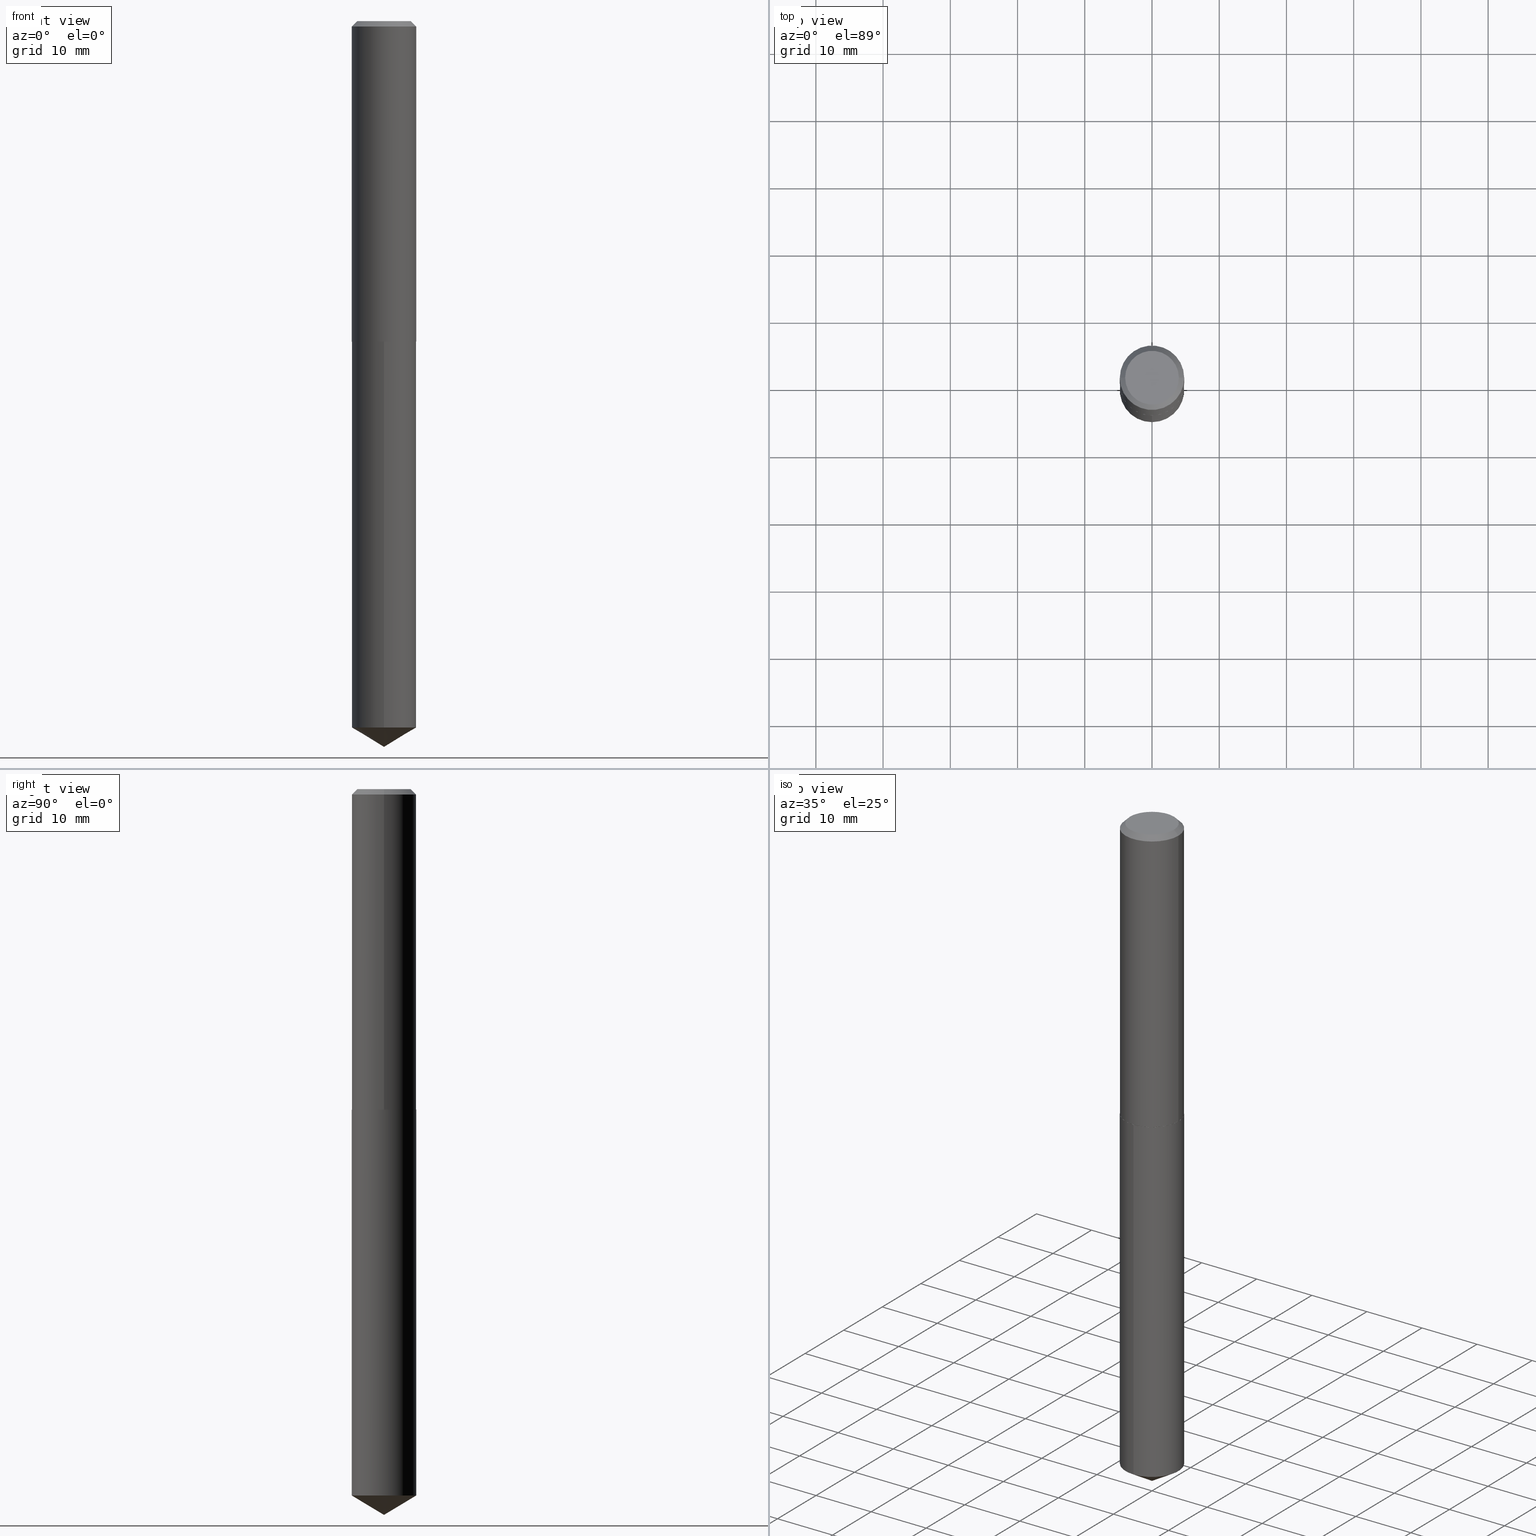
[diagram: canonical four-view strip — front | top / right | iso, engineering-drawing reading convention]
A machine part, canonical four-view strip (front | top / right | iso — engineering-drawing reading convention). The complete STEP part file that produces these views, byte-faithful:
ISO-10303-21;
HEADER;
FILE_DESCRIPTION (( 'STEP AP203' ),
    '1' );
FILE_NAME ('51222.STEP',
    '2024-04-22T18:41:56',
    ( '' ),
    ( '' ),
    'SwSTEP 2.0',
    'SolidWorks 2023',
    '' );
FILE_SCHEMA (( 'CONFIG_CONTROL_DESIGN' ));
ENDSEC;

DATA;
#1 = CONICAL_SURFACE ( 'NONE', #275, 0.1885000000000002784, 0.7853981633978239785 ) ;
#2 = DIRECTION ( 'NONE',  ( -6.982962677686266711E-15, -1.000000000000000000, 2.898512460121233908E-15 ) ) ;
#3 = EDGE_CURVE ( 'NONE', #116, #118, #174, .T. ) ;
#4 = ORIENTED_EDGE ( 'NONE', *, *, #87, .T. ) ;
#5 = CALENDAR_DATE ( 2024, 22, 4 ) ;
#6 = AXIS2_PLACEMENT_3D ( 'NONE', #107, #220, #343 ) ;
#7 = AXIS2_PLACEMENT_3D ( 'NONE', #201, #301, #117 ) ;
#8 = PRODUCT ( '51222', '51222', '', ( #210 ) ) ;
#9 = COORDINATED_UNIVERSAL_TIME_OFFSET ( 5, 0, .BEHIND. ) ;
#10 = CARTESIAN_POINT ( 'NONE',  ( 1.011635140017787534E-28, -1.444321640863108601E-14, -4.136737773313305944 ) ) ;
#11 = DATE_AND_TIME ( #282, #102 ) ;
#12 = DIRECTION ( 'NONE',  ( -0.7071067811865449082, 2.468850131082229450E-15, -0.7071067811865501263 ) ) ;
#13 = PERSON_AND_ORGANIZATION_ROLE ( 'design_owner' ) ;
#14 = CARTESIAN_POINT ( 'NONE',  ( -6.738379978296069609E-48, 9.620620753268311952E-34, 2.755455298081579541E-19 ) ) ;
#15 = CIRCLE ( 'NONE', #345, 0.1885000000000000286 ) ;
#16 = CARTESIAN_POINT ( 'NONE',  ( 4.590144949209500083E-29, -6.553510473008582355E-15, -1.876999999999999336 ) ) ;
#17 = DIRECTION ( 'NONE',  ( 0.7071067811868130271, -2.468850131085038979E-15, 0.7071067811862817853 ) ) ;
#18 = EDGE_LOOP ( 'NONE', ( #293, #349, #259, #140 ) ) ;
#19 = ORIENTED_EDGE ( 'NONE', *, *, #95, .T. ) ;
#20 = DIRECTION ( 'NONE',  ( 1.000000000000000000, -6.982962677686266711E-15, 0.000000000000000000 ) ) ;
#21 = AXIS2_PLACEMENT_3D ( 'NONE', #146, #269, #2 ) ;
#22 = DIRECTION ( 'NONE',  ( 2.445468806185136597E-29, -3.491481338843145583E-15, -1.000000000000000000 ) ) ;
#23 = ORIENTED_EDGE ( 'NONE', *, *, #250, .F. ) ;
#24 = CARTESIAN_POINT ( 'NONE',  ( 0.1572500000000000009, -1.240562987284178150E-15, 5.510910596244927326E-19 ) ) ;
#25 = CARTESIAN_POINT ( 'NONE',  ( -0.1885000000000002784, -5.212391675431369628E-15, -1.876499999999999613 ) ) ;
#26 = CARTESIAN_POINT ( 'NONE',  ( 4.588922214806407281E-29, -6.551764732339160851E-15, -1.876499999999999613 ) ) ;
#27 = APPROVAL ( #38, 'UNSPECIFIED' ) ;
#28 = CARTESIAN_POINT ( 'NONE',  ( 4.590144949209500083E-29, -6.553510473008582355E-15, -1.876999999999999336 ) ) ;
#29 = DATE_TIME_ROLE ( 'creation_date' ) ;
#30 = AXIS2_PLACEMENT_3D ( 'NONE', #309, #40, #162 ) ;
#31 = VECTOR ( 'NONE', #365, 39.37007874015748854 ) ;
#32 = ORIENTED_EDGE ( 'NONE', *, *, #327, .T. ) ;
#33 = PERSON_AND_ORGANIZATION_ROLE ( 'creator' ) ;
#34 = ORIENTED_EDGE ( 'NONE', *, *, #141, .F. ) ;
#35 = CARTESIAN_POINT ( 'NONE',  ( 0.000000000000000000, 0.000000000000000000, 0.000000000000000000 ) ) ;
#36 = DIRECTION ( 'NONE',  ( -2.445468806185136597E-29, 3.491481338843145583E-15, 1.000000000000000000 ) ) ;
#37 = ADVANCED_FACE ( 'NONE', ( #347 ), #79, .F. ) ;
#38 = APPROVAL_STATUS ( 'not_yet_approved' ) ;
#39 = VECTOR ( 'NONE', #12, 39.37007874015748143 ) ;
#40 = DIRECTION ( 'NONE',  ( -2.445507844419336832E-29, 3.491425433869852673E-15, 1.000000000000000000 ) ) ;
#41 = CC_DESIGN_APPROVAL ( #195, ( #61 ) ) ;
#42 = CARTESIAN_POINT ( 'NONE',  ( 0.1885000000000002784, -7.868053197083025029E-15, -1.876499999999999613 ) ) ;
#43 = DIRECTION ( 'NONE',  ( -2.445507844419336832E-29, 3.491425433869852673E-15, 1.000000000000000000 ) ) ;
#44 = EDGE_LOOP ( 'NONE', ( #166, #380, #360 ) ) ;
#45 = DIRECTION ( 'NONE',  ( 1.000000000000000000, -6.982962677686266711E-15, 4.876176775795935232E-29 ) ) ;
#46 = ORIENTED_EDGE ( 'NONE', *, *, #131, .T. ) ;
#47 = CARTESIAN_POINT ( 'NONE',  ( 1.339373056907834611E-15, 0.1884999999999934506, -1.877000000000000002 ) ) ;
#48 = PERSON ( 'UNSPECIFIED', 'UNSPECIFIED', 'UNSPECIFIED', ('UNSPECIFIED'), ('UNSPECIFIED'), ('UNSPECIFIED') ) ;
#49 = CIRCLE ( 'NONE', #189, 0.1885000000000002784 ) ;
#50 = EDGE_LOOP ( 'NONE', ( #389, #358, #94 ) ) ;
#51 = LOCAL_TIME ( 14, 41, 56.00000000000000000, #211 ) ;
#52 = MANIFOLD_SOLID_BREP ( 'Body-Move/Copy2[1]', #325 ) ;
#53 = VERTEX_POINT ( 'NONE', #190 ) ;
#54 = PRODUCT_RELATED_PRODUCT_CATEGORY ( 'detail', '', ( #8 ) ) ;
#55 = DIRECTION ( 'NONE',  ( -5.985567269335957057E-15, -0.8571673007021125557, 0.5150380749100539335 ) ) ;
#56 = CIRCLE ( 'NONE', #109, 0.1880000000000002780 ) ;
#57 = CYLINDRICAL_SURFACE ( 'NONE', #161, 0.1885000000000000286 ) ;
#58 = EDGE_LOOP ( 'NONE', ( #382, #82, #237, #86 ) ) ;
#59 = LENGTH_MEASURE_WITH_UNIT ( LENGTH_MEASURE( 0.02539999999999999897 ), #267 );
#60 = AXIS2_PLACEMENT_3D ( 'NONE', #16, #43, #339 ) ;
#61 = SECURITY_CLASSIFICATION ( '', '', #372 ) ;
#62 = CARTESIAN_POINT ( 'NONE',  ( 4.590144949209500083E-29, -6.553510473008582355E-15, -1.876999999999999336 ) ) ;
#63 = EDGE_CURVE ( 'NONE', #77, #108, #317, .T. ) ;
#64 = PERSON_AND_ORGANIZATION ( #48, #175 ) ;
#65 = APPROVAL_ROLE ( '' ) ;
#66 = CALENDAR_DATE ( 2024, 22, 4 ) ;
#67 = CIRCLE ( 'NONE', #268, 0.1885000000000000286 ) ;
#68 = VECTOR ( 'NONE', #260, 39.37007874015748143 ) ;
#69 = CARTESIAN_POINT ( 'NONE',  ( 1.339373056907890225E-15, 0.1884999999999934506, -1.877000000000000002 ) ) ;
#70 = APPLICATION_PROTOCOL_DEFINITION ( 'international standard', 'config_control_design', 1994, #388 ) ;
#71 = PLANE ( 'NONE',  #160 ) ;
#72 = ADVANCED_FACE ( 'NONE', ( #104 ), #106, .T. ) ;
#73 = PERSON_AND_ORGANIZATION ( #48, #175 ) ;
#74 = DIRECTION ( 'NONE',  ( 1.000000000000000000, -6.982962677686266711E-15, 4.876198312324207577E-29 ) ) ;
#75 = ORIENTED_EDGE ( 'NONE', *, *, #327, .F. ) ;
#76 = CONICAL_SURFACE ( 'NONE', #203, 0.1885000000000002784, 0.7853981633978239785 ) ;
#77 = VERTEX_POINT ( 'NONE', #69 ) ;
#78 = CARTESIAN_POINT ( 'NONE',  ( -0.1885000000000001674, 1.339373056907790040E-15, -9.272192645130504778E-30 ) ) ;
#79 = PLANE ( 'NONE',  #101 ) ;
#80 = ORIENTED_EDGE ( 'NONE', *, *, #103, .T. ) ;
#81 = DIRECTION ( 'NONE',  ( 1.000000000000000000, -6.982962677686265922E-15, 0.000000000000000000 ) ) ;
#82 = ORIENTED_EDGE ( 'NONE', *, *, #218, .T. ) ;
#83 = ORIENTED_EDGE ( 'NONE', *, *, #299, .F. ) ;
#84 = ORIENTED_EDGE ( 'NONE', *, *, #371, .F. ) ;
#85 = VECTOR ( 'NONE', #315, 39.37007874015748143 ) ;
#86 = ORIENTED_EDGE ( 'NONE', *, *, #205, .F. ) ;
#87 = EDGE_CURVE ( 'NONE', #144, #108, #216, .T. ) ;
#88 = DIRECTION ( 'NONE',  ( -6.982962677686266711E-15, -1.000000000000000000, 2.898512460121233908E-15 ) ) ;
#89 = ORIENTED_EDGE ( 'NONE', *, *, #115, .T. ) ;
#90 = CARTESIAN_POINT ( 'NONE',  ( -0.1885000000000002784, -5.212391675431369628E-15, -1.876499999999999613 ) ) ;
#91 = VECTOR ( 'NONE', #222, 39.37007874015748143 ) ;
#92 = LOCAL_TIME ( 14, 41, 56.00000000000000000, #244 ) ;
#93 = ADVANCED_FACE ( 'NONE', ( #254 ), #71, .F. ) ;
#94 = ORIENTED_EDGE ( 'NONE', *, *, #147, .F. ) ;
#95 = EDGE_CURVE ( 'NONE', #246, #333, #202, .T. ) ;
#96 = DATE_AND_TIME ( #340, #92 ) ;
#97 = APPROVAL_DATE_TIME ( #370, #195 ) ;
#98 = COORDINATED_UNIVERSAL_TIME_OFFSET ( 5, 0, .BEHIND. ) ;
#99 = CARTESIAN_POINT ( 'NONE',  ( 0.1885000000000000286, -1.402312664418782881E-15, -0.03125000000000023592 ) ) ;
#100 = PERSON_AND_ORGANIZATION ( #48, #175 ) ;
#101 = AXIS2_PLACEMENT_3D ( 'NONE', #14, #156, #337 ) ;
#102 = LOCAL_TIME ( 14, 41, 56.00000000000000000, #98 ) ;
#103 = EDGE_CURVE ( 'NONE', #53, #333, #378, .T. ) ;
#104 = FACE_OUTER_BOUND ( 'NONE', #350, .T. ) ;
#105 = APPROVAL_ROLE ( '' ) ;
#106 = CYLINDRICAL_SURFACE ( 'NONE', #368, 0.1885000000000001674 ) ;
#107 = CARTESIAN_POINT ( 'NONE',  ( 4.590144949209500083E-29, -6.553510473008582355E-15, -1.876999999999999336 ) ) ;
#108 = VERTEX_POINT ( 'NONE', #193 ) ;
#109 = AXIS2_PLACEMENT_3D ( 'NONE', #355, #257, #81 ) ;
#110 = LINE ( 'NONE', #99, #91 ) ;
#111 = CIRCLE ( 'NONE', #7, 0.1572500000000000009 ) ;
#112 = ORIENTED_EDGE ( 'NONE', *, *, #115, .F. ) ;
#113 = DIRECTION ( 'NONE',  ( -2.445507844419336832E-29, 3.491425433869852673E-15, 1.000000000000000000 ) ) ;
#114 = EDGE_LOOP ( 'NONE', ( #75, #89, #19, #376 ) ) ;
#115 = EDGE_CURVE ( 'NONE', #383, #246, #110, .T. ) ;
#116 = VERTEX_POINT ( 'NONE', #278 ) ;
#117 = DIRECTION ( 'NONE',  ( 1.000000000000000000, -6.982962677686266711E-15, 4.876198312324207577E-29 ) ) ;
#118 = VERTEX_POINT ( 'NONE', #307 ) ;
#119 = EDGE_CURVE ( 'NONE', #144, #221, #261, .T. ) ;
#120 = CARTESIAN_POINT ( 'NONE',  ( 4.588922214806407281E-29, -6.551764732339160851E-15, -1.876499999999999613 ) ) ;
#121 = ORIENTED_EDGE ( 'NONE', *, *, #187, .T. ) ;
#122 = CONICAL_SURFACE ( 'NONE', #204, 65.52281426576898582, 1.029744258676658308 ) ;
#123 = ADVANCED_BREP_SHAPE_REPRESENTATION ( '51222', ( #52, #312, #288 ), #228 ) ;
#124 = ORIENTED_EDGE ( 'NONE', *, *, #299, .T. ) ;
#125 = CC_DESIGN_PERSON_AND_ORGANIZATION_ASSIGNMENT ( #151, #126, ( #247 ) ) ;
#126 = PERSON_AND_ORGANIZATION_ROLE ( 'design_supplier' ) ;
#127 = ORIENTED_EDGE ( 'NONE', *, *, #63, .T. ) ;
#128 = AXIS2_PLACEMENT_3D ( 'NONE', #287, #300, #390 ) ;
#129 = APPROVAL_DATE_TIME ( #180, #27 ) ;
#130 = DIRECTION ( 'NONE',  ( -6.982962677686266711E-15, -1.000000000000000000, 2.898512460121233908E-15 ) ) ;
#131 = EDGE_CURVE ( 'NONE', #316, #142, #49, .T. ) ;
#132 = CARTESIAN_POINT ( 'NONE',  ( 0.1885000000000002784, -7.868053197083025029E-15, -1.876499999999999613 ) ) ;
#133 = VECTOR ( 'NONE', #322, 39.37007874015748143 ) ;
#134 = CARTESIAN_POINT ( 'NONE',  ( 4.590144949209499522E-29, -6.553510473008580777E-15, -1.876999999999999114 ) ) ;
#135 = CARTESIAN_POINT ( 'NONE',  ( 4.588922214806407281E-29, -6.551764732339160851E-15, -1.876499999999999613 ) ) ;
#136 = DIRECTION ( 'NONE',  ( -2.445507844419336832E-29, 3.491425433869852673E-15, 1.000000000000000000 ) ) ;
#137 = EDGE_LOOP ( 'NONE', ( #199, #256 ) ) ;
#138 = CIRCLE ( 'NONE', #318, 0.1885000000000002784 ) ;
#139 = EDGE_LOOP ( 'NONE', ( #273, #32 ) ) ;
#140 = ORIENTED_EDGE ( 'NONE', *, *, #131, .F. ) ;
#141 = EDGE_CURVE ( 'NONE', #53, #383, #361, .T. ) ;
#142 = VERTEX_POINT ( 'NONE', #132 ) ;
#143 = CARTESIAN_POINT ( 'NONE',  ( 1.039340833878218266E-28, -1.483855809394687209E-14, -4.250000000000000000 ) ) ;
#144 = VERTEX_POINT ( 'NONE', #373 ) ;
#145 = CYLINDRICAL_SURFACE ( 'NONE', #386, 0.1885000000000001674 ) ;
#146 = CARTESIAN_POINT ( 'NONE',  ( 4.590144949209500083E-29, -6.553510473008582355E-15, -1.876999999999999336 ) ) ;
#147 = EDGE_CURVE ( 'NONE', #221, #144, #303, .T. ) ;
#148 = DIRECTION ( 'NONE',  ( -0.7071067811868130271, 7.493145998871311837E-15, 0.7071067811862817853 ) ) ;
#149 = DIRECTION ( 'NONE',  ( -2.445507844419336832E-29, 3.491425433869852673E-15, 1.000000000000000000 ) ) ;
#150 = ADVANCED_FACE ( 'NONE', ( #252 ), #377, .F. ) ;
#151 = PERSON_AND_ORGANIZATION ( #48, #175 ) ;
#152 = APPLICATION_PROTOCOL_DEFINITION ( 'international standard', 'config_control_design', 1994, #249 ) ;
#153 = DIRECTION ( 'NONE',  ( 1.000000000000000000, -6.982962677686266711E-15, 4.876176775795935232E-29 ) ) ;
#154 = CC_DESIGN_PERSON_AND_ORGANIZATION_ASSIGNMENT ( #100, #33, ( #247 ) ) ;
#155 = SHAPE_DEFINITION_REPRESENTATION ( #243, #123 ) ;
#156 = DIRECTION ( 'NONE',  ( 2.438088387897960049E-29, -3.491481338843145188E-15, -1.000000000000000000 ) ) ;
#157 = DIRECTION ( 'NONE',  ( 1.000000000000000000, 0.000000000000000000, 0.000000000000000000 ) ) ;
#158 = DIRECTION ( 'NONE',  ( 1.000000000000000000, -6.982962677686268288E-15, 0.000000000000000000 ) ) ;
#159 = APPROVAL_ROLE ( '' ) ;
#160 = AXIS2_PLACEMENT_3D ( 'NONE', #186, #214, #183 ) ;
#161 = AXIS2_PLACEMENT_3D ( 'NONE', #28, #149, #88 ) ;
#162 = DIRECTION ( 'NONE',  ( -6.982962677686266711E-15, -1.000000000000000000, 2.898512460121233908E-15 ) ) ;
#163 = CARTESIAN_POINT ( 'NONE',  ( 7.642090019328610544E-31, -1.091087918388491376E-16, -0.03125000000000023592 ) ) ;
#164 = DIRECTION ( 'NONE',  ( 1.000000000000000000, -6.982962677686265922E-15, 0.000000000000000000 ) ) ;
#165 = CARTESIAN_POINT ( 'NONE',  ( 0.1885000000000000286, -1.425397256582710518E-15, -0.03125000000000023592 ) ) ;
#166 = ORIENTED_EDGE ( 'NONE', *, *, #320, .F. ) ;
#167 = DIRECTION ( 'NONE',  ( -6.982962677686265133E-15, -1.000000000000000000, 3.468864327941565026E-15 ) ) ;
#168 = LOCAL_TIME ( 14, 41, 56.00000000000000000, #242 ) ;
#169 = ADVANCED_FACE ( 'NONE', ( #290 ), #274, .T. ) ;
#170 = VERTEX_POINT ( 'NONE', #143 ) ;
#171 = DIRECTION ( 'NONE',  ( -6.982962677686265133E-15, -1.000000000000000000, 3.468864327941565026E-15 ) ) ;
#172 = ORIENTED_EDGE ( 'NONE', *, *, #63, .F. ) ;
#173 = CC_DESIGN_DATE_AND_TIME_ASSIGNMENT ( #96, #29, ( #266 ) ) ;
#174 = CIRCLE ( 'NONE', #324, 0.1880000000000002780 ) ;
#175 = ORGANIZATION ( 'UNSPECIFIED', 'UNSPECIFIED', '' ) ;
#176 = DIRECTION ( 'NONE',  ( 1.000000000000000000, -6.982962677686268288E-15, 0.000000000000000000 ) ) ;
#177 = EDGE_CURVE ( 'NONE', #118, #116, #56, .T. ) ;
#178 = CARTESIAN_POINT ( 'NONE',  ( 1.039326178925099410E-28, -1.483876796121661353E-14, -4.250000000000000000 ) ) ;
#179 =( NAMED_UNIT ( * ) SI_UNIT ( $, .STERADIAN. ) SOLID_ANGLE_UNIT ( ) );
#180 = DATE_AND_TIME ( #5, #375 ) ;
#181 = ADVANCED_FACE ( 'NONE', ( #224 ), #122, .T. ) ;
#182 = CC_DESIGN_APPROVAL ( #27, ( #247 ) ) ;
#183 = DIRECTION ( 'NONE',  ( 1.000000000000000000, -6.982962677686265922E-15, 4.876176775795935793E-29 ) ) ;
#184 = DESIGN_CONTEXT ( 'detailed design', #388, 'design' ) ;
#185 =( CONVERSION_BASED_UNIT ( 'INCH', #59 ) LENGTH_UNIT ( ) NAMED_UNIT ( #217 ) );
#186 = CARTESIAN_POINT ( 'NONE',  ( 4.590144949209499522E-29, -6.553510473008580777E-15, -1.876999999999999114 ) ) ;
#187 = EDGE_CURVE ( 'NONE', #333, #246, #67, .T. ) ;
#188 = CARTESIAN_POINT ( 'NONE',  ( -1.316288464743815466E-15, -0.1885000000000065790, -1.876999999999998892 ) ) ;
#189 = AXIS2_PLACEMENT_3D ( 'NONE', #135, #36, #158 ) ;
#190 = CARTESIAN_POINT ( 'NONE',  ( -0.1572500000000000009, 1.152625276985588752E-15, 5.510910596084460769E-19 ) ) ;
#191 = EDGE_LOOP ( 'NONE', ( #124, #127 ) ) ;
#192 = CARTESIAN_POINT ( 'NONE',  ( 1.339373056907889634E-15, 0.1884999999999855125, -4.136737773313305944 ) ) ;
#193 = CARTESIAN_POINT ( 'NONE',  ( -1.316288464743815466E-15, -0.1885000000000065790, -1.876999999999998892 ) ) ;
#194 = CARTESIAN_POINT ( 'NONE',  ( 0.1885000000000001674, -1.316288464743862403E-15, 9.191593222375346424E-30 ) ) ;
#195 = APPROVAL ( #272, 'UNSPECIFIED' ) ;
#196 = CLOSED_SHELL ( 'NONE', ( #169, #240, #387, #93, #292, #72, #255, #37 ) ) ;
#197 = ORIENTED_EDGE ( 'NONE', *, *, #381, .T. ) ;
#198 = LINE ( 'NONE', #194, #85 ) ;
#199 = ORIENTED_EDGE ( 'NONE', *, *, #177, .F. ) ;
#200 = DIRECTION ( 'NONE',  ( -2.445468806185136597E-29, 3.491481338843145583E-15, 1.000000000000000000 ) ) ;
#201 = CARTESIAN_POINT ( 'NONE',  ( -1.347675995659213922E-47, 1.924124150653662390E-33, 5.510910596163159082E-19 ) ) ;
#202 = CIRCLE ( 'NONE', #385, 0.1885000000000000286 ) ;
#203 = AXIS2_PLACEMENT_3D ( 'NONE', #120, #363, #176 ) ;
#204 = AXIS2_PLACEMENT_3D ( 'NONE', #227, #136, #171 ) ;
#205 = EDGE_CURVE ( 'NONE', #142, #246, #198, .T. ) ;
#206 = FACE_OUTER_BOUND ( 'NONE', #353, .T. ) ;
#207 = VECTOR ( 'NONE', #17, 39.37007874015748854 ) ;
#208 = PERSON_AND_ORGANIZATION ( #48, #175 ) ;
#209 = EDGE_CURVE ( 'NONE', #221, #77, #253, .T. ) ;
#210 = MECHANICAL_CONTEXT ( 'NONE', #249, 'mechanical' ) ;
#211 = COORDINATED_UNIVERSAL_TIME_OFFSET ( 5, 0, .BEHIND. ) ;
#212 = DIRECTION ( 'NONE',  ( -2.445468806185136597E-29, 3.491481338843145583E-15, 1.000000000000000000 ) ) ;
#213 = CALENDAR_DATE ( 2024, 22, 4 ) ;
#214 = DIRECTION ( 'NONE',  ( -2.438088387897960049E-29, 3.491481338843145188E-15, 1.000000000000000000 ) ) ;
#215 = PERSON_AND_ORGANIZATION_ROLE ( 'creator' ) ;
#216 = LINE ( 'NONE', #188, #331 ) ;
#217 = DIMENSIONAL_EXPONENTS ( 1.000000000000000000, 0.000000000000000000, 0.000000000000000000, 0.000000000000000000, 0.000000000000000000, 0.000000000000000000, 0.000000000000000000 ) ;
#218 = EDGE_CURVE ( 'NONE', #316, #333, #346, .T. ) ;
#219 = CARTESIAN_POINT ( 'NONE',  ( -8.588650133044549729E-28, 1.226190312192628567E-13, 35.12007874015748143 ) ) ;
#220 = DIRECTION ( 'NONE',  ( 2.445507844419336551E-29, -3.491425433869852673E-15, -1.000000000000000000 ) ) ;
#221 = VERTEX_POINT ( 'NONE', #192 ) ;
#222 = DIRECTION ( 'NONE',  ( 0.7071067811865449082, -7.319954787623246579E-15, -0.7071067811865501263 ) ) ;
#223 = CC_DESIGN_PERSON_AND_ORGANIZATION_ASSIGNMENT ( #308, #215, ( #266 ) ) ;
#224 = FACE_OUTER_BOUND ( 'NONE', #50, .T. ) ;
#225 = LINE ( 'NONE', #42, #207 ) ;
#226 = ORIENTED_EDGE ( 'NONE', *, *, #177, .T. ) ;
#227 = CARTESIAN_POINT ( 'NONE',  ( -8.588650133044549729E-28, 1.226190312192628567E-13, 35.12007874015748143 ) ) ;
#228 =( GEOMETRIC_REPRESENTATION_CONTEXT ( 3 ) GLOBAL_UNCERTAINTY_ASSIGNED_CONTEXT ( ( #276 ) ) GLOBAL_UNIT_ASSIGNED_CONTEXT ( ( #185, #302, #179 ) ) REPRESENTATION_CONTEXT ( 'NONE', 'WORKASPACE' ) );
#229 = DIRECTION ( 'NONE',  ( -6.982962677686266711E-15, -1.000000000000000000, 2.898512460121233908E-15 ) ) ;
#230 = ORIENTED_EDGE ( 'NONE', *, *, #187, .F. ) ;
#231 = CARTESIAN_POINT ( 'NONE',  ( 1.039340962384858267E-28, -1.483855809394687209E-14, -4.250000000000000000 ) ) ;
#232 = DIRECTION ( 'NONE',  ( -2.445468806185136597E-29, 3.491481338843145583E-15, 1.000000000000000000 ) ) ;
#233 = AXIS2_PLACEMENT_3D ( 'NONE', #265, #22, #384 ) ;
#234 = FACE_OUTER_BOUND ( 'NONE', #18, .T. ) ;
#235 = ADVANCED_FACE ( 'NONE', ( #314 ), #297, .T. ) ;
#236 = DIRECTION ( 'NONE',  ( 1.000000000000000000, -6.982962677686268288E-15, 0.000000000000000000 ) ) ;
#237 = ORIENTED_EDGE ( 'NONE', *, *, #95, .F. ) ;
#238 = PERSON_AND_ORGANIZATION_ROLE ( 'classification_officer' ) ;
#239 = AXIS2_PLACEMENT_3D ( 'NONE', #10, #374, #130 ) ;
#240 = ADVANCED_FACE ( 'NONE', ( #294 ), #145, .T. ) ;
#241 = VECTOR ( 'NONE', #148, 39.37007874015748854 ) ;
#242 = COORDINATED_UNIVERSAL_TIME_OFFSET ( 5, 0, .BEHIND. ) ;
#243 = PRODUCT_DEFINITION_SHAPE ( 'NONE', 'NONE',  #266 ) ;
#244 = COORDINATED_UNIVERSAL_TIME_OFFSET ( 5, 0, .BEHIND. ) ;
#245 = CARTESIAN_POINT ( 'NONE',  ( -1.347675995659213922E-47, 1.924124150653662390E-33, 5.510910596163159082E-19 ) ) ;
#246 = VERTEX_POINT ( 'NONE', #165 ) ;
#247 = PRODUCT_DEFINITION_FORMATION_WITH_SPECIFIED_SOURCE ( 'ANY', '', #8, .NOT_KNOWN. ) ;
#248 = APPROVAL_DATE_TIME ( #11, #357 ) ;
#249 = APPLICATION_CONTEXT ( 'configuration controlled 3d designs of mechanical parts and assemblies' ) ;
#250 = EDGE_CURVE ( 'NONE', #118, #142, #225, .T. ) ;
#251 = DIRECTION ( 'NONE',  ( -2.445468806185136597E-29, 3.491481338843145583E-15, 1.000000000000000000 ) ) ;
#252 = FACE_OUTER_BOUND ( 'NONE', #191, .T. ) ;
#253 = LINE ( 'NONE', #47, #133 ) ;
#254 = FACE_OUTER_BOUND ( 'NONE', #137, .T. ) ;
#255 = ADVANCED_FACE ( 'NONE', ( #351 ), #338, .T. ) ;
#256 = ORIENTED_EDGE ( 'NONE', *, *, #3, .F. ) ;
#257 = DIRECTION ( 'NONE',  ( -2.445468806185136597E-29, 3.491481338843145583E-15, 1.000000000000000000 ) ) ;
#258 = ORIENTED_EDGE ( 'NONE', *, *, #147, .T. ) ;
#259 = ORIENTED_EDGE ( 'NONE', *, *, #250, .T. ) ;
#260 = DIRECTION ( 'NONE',  ( -2.445468806185136877E-29, 3.491481338843145188E-15, 1.000000000000000000 ) ) ;
#261 = CIRCLE ( 'NONE', #239, 0.1885000000000000286 ) ;
#262 = EDGE_LOOP ( 'NONE', ( #364, #328, #83, #291 ) ) ;
#263 = LINE ( 'NONE', #231, #31 ) ;
#264 = FACE_OUTER_BOUND ( 'NONE', #271, .T. ) ;
#265 = CARTESIAN_POINT ( 'NONE',  ( 7.642090019328610544E-31, -1.091087918388491376E-16, -0.03125000000000023592 ) ) ;
#266 = PRODUCT_DEFINITION ( 'UNKNOWN', '', #247, #184 ) ;
#267 =( LENGTH_UNIT ( ) NAMED_UNIT ( * ) SI_UNIT ( $, .METRE. ) );
#268 = AXIS2_PLACEMENT_3D ( 'NONE', #163, #348, #20 ) ;
#269 = DIRECTION ( 'NONE',  ( -2.445507844419336832E-29, 3.491425433869852673E-15, 1.000000000000000000 ) ) ;
#270 = CC_DESIGN_DATE_AND_TIME_ASSIGNMENT ( #335, #367, ( #61 ) ) ;
#271 = EDGE_LOOP ( 'NONE', ( #226, #197, #84, #23 ) ) ;
#272 = APPROVAL_STATUS ( 'not_yet_approved' ) ;
#273 = ORIENTED_EDGE ( 'NONE', *, *, #141, .T. ) ;
#274 = CONICAL_SURFACE ( 'NONE', #233, 0.1885000000000000286, 0.7853981633974446153 ) ;
#275 = AXIS2_PLACEMENT_3D ( 'NONE', #330, #232, #236 ) ;
#276 = UNCERTAINTY_MEASURE_WITH_UNIT (LENGTH_MEASURE( 1.000000000000000082E-05 ), #185, 'distance_accuracy_value', 'NONE');
#277 = APPROVAL_STATUS ( 'not_yet_approved' ) ;
#278 = CARTESIAN_POINT ( 'NONE',  ( -0.1880000000000002780, -5.215040902605480040E-15, -1.876999999999999114 ) ) ;
#279 = PERSON_AND_ORGANIZATION ( #48, #175 ) ;
#280 = DIRECTION ( 'NONE',  ( 1.000000000000000000, -6.982962677686266711E-15, 0.000000000000000000 ) ) ;
#281 = ADVANCED_FACE ( 'NONE', ( #206 ), #298, .T. ) ;
#282 = CALENDAR_DATE ( 2024, 22, 4 ) ;
#283 = CARTESIAN_POINT ( 'NONE',  ( 7.642090019328610544E-31, -1.091087918388491376E-16, -0.03125000000000023592 ) ) ;
#284 = APPROVAL_PERSON_ORGANIZATION ( #208, #195, #65 ) ;
#285 = CARTESIAN_POINT ( 'NONE',  ( 0.000000000000000000, 0.000000000000000000, 0.000000000000000000 ) ) ;
#286 = DIRECTION ( 'NONE',  ( -2.445507844419337112E-29, 3.491425433869852673E-15, 1.000000000000000000 ) ) ;
#287 = CARTESIAN_POINT ( 'NONE',  ( 7.642090019328610544E-31, -1.091087918388491376E-16, -0.03125000000000023592 ) ) ;
#288 = AXIS2_PLACEMENT_3D ( 'NONE', #35, #306, #157 ) ;
#289 = DIRECTION ( 'NONE',  ( -2.445468806185136597E-29, 3.491481338843145583E-15, 1.000000000000000000 ) ) ;
#290 = FACE_OUTER_BOUND ( 'NONE', #114, .T. ) ;
#291 = ORIENTED_EDGE ( 'NONE', *, *, #87, .F. ) ;
#292 = ADVANCED_FACE ( 'NONE', ( #234 ), #1, .T. ) ;
#293 = ORIENTED_EDGE ( 'NONE', *, *, #381, .F. ) ;
#294 = FACE_OUTER_BOUND ( 'NONE', #58, .T. ) ;
#295 = ORIENTED_EDGE ( 'NONE', *, *, #209, .F. ) ;
#296 = CARTESIAN_POINT ( 'NONE',  ( -0.1885000000000000286, -1.991063705181214147E-15, -0.03125000000000023592 ) ) ;
#297 = CONICAL_SURFACE ( 'NONE', #354, 65.52281426576898582, 1.029744258676658308 ) ;
#298 = CYLINDRICAL_SURFACE ( 'NONE', #21, 0.1885000000000000286 ) ;
#299 = EDGE_CURVE ( 'NONE', #108, #77, #15, .T. ) ;
#300 = DIRECTION ( 'NONE',  ( 2.445468806185136597E-29, -3.491481338843145583E-15, -1.000000000000000000 ) ) ;
#301 = DIRECTION ( 'NONE',  ( -2.445468806185136597E-29, 3.491481338843145583E-15, 1.000000000000000000 ) ) ;
#302 =( NAMED_UNIT ( * ) PLANE_ANGLE_UNIT ( ) SI_UNIT ( $, .RADIAN. ) );
#303 = CIRCLE ( 'NONE', #30, 0.1885000000000000286 ) ;
#304 = APPROVAL_PERSON_ORGANIZATION ( #73, #27, #159 ) ;
#305 = DIRECTION ( 'NONE',  ( -2.445468806185136597E-29, 3.491481338843145583E-15, 1.000000000000000000 ) ) ;
#306 = DIRECTION ( 'NONE',  ( 0.000000000000000000, 0.000000000000000000, 1.000000000000000000 ) ) ;
#307 = CARTESIAN_POINT ( 'NONE',  ( 0.1880000000000002780, -7.866307456413601159E-15, -1.876999999999999114 ) ) ;
#308 = PERSON_AND_ORGANIZATION ( #48, #175 ) ;
#309 = CARTESIAN_POINT ( 'NONE',  ( 1.011635140017787534E-28, -1.444321640863108601E-14, -4.136737773313305944 ) ) ;
#310 = CC_DESIGN_PERSON_AND_ORGANIZATION_ASSIGNMENT ( #334, #13, ( #8 ) ) ;
#311 = DIRECTION ( 'NONE',  ( -2.445468806185136597E-29, 3.491481338843145583E-15, 1.000000000000000000 ) ) ;
#312 = MANIFOLD_SOLID_BREP ( 'Body-Move/Copy2[2]', #196 ) ;
#313 = ORIENTED_EDGE ( 'NONE', *, *, #218, .F. ) ;
#314 = FACE_OUTER_BOUND ( 'NONE', #44, .T. ) ;
#315 = DIRECTION ( 'NONE',  ( -2.445468806185136877E-29, 3.491481338843145188E-15, 1.000000000000000000 ) ) ;
#316 = VERTEX_POINT ( 'NONE', #25 ) ;
#317 = CIRCLE ( 'NONE', #60, 0.1885000000000000286 ) ;
#318 = AXIS2_PLACEMENT_3D ( 'NONE', #26, #200, #359 ) ;
#319 = EDGE_LOOP ( 'NONE', ( #112, #34, #80, #121 ) ) ;
#320 = EDGE_CURVE ( 'NONE', #170, #144, #329, .T. ) ;
#321 = ORIENTED_EDGE ( 'NONE', *, *, #205, .T. ) ;
#322 = DIRECTION ( 'NONE',  ( -2.445507844419337112E-29, 3.491425433869852673E-15, 1.000000000000000000 ) ) ;
#323 = LINE ( 'NONE', #90, #241 ) ;
#324 = AXIS2_PLACEMENT_3D ( 'NONE', #134, #311, #164 ) ;
#325 = CLOSED_SHELL ( 'NONE', ( #336, #235, #181, #281, #150 ) ) ;
#326 = DIRECTION ( 'NONE',  ( -2.445507844419336832E-29, 3.491425433869852673E-15, 1.000000000000000000 ) ) ;
#327 = EDGE_CURVE ( 'NONE', #383, #53, #111, .T. ) ;
#328 = ORIENTED_EDGE ( 'NONE', *, *, #209, .T. ) ;
#329 = LINE ( 'NONE', #178, #362 ) ;
#330 = CARTESIAN_POINT ( 'NONE',  ( 4.588922214806407281E-29, -6.551764732339160851E-15, -1.876499999999999613 ) ) ;
#331 = VECTOR ( 'NONE', #286, 39.37007874015748143 ) ;
#332 = CC_DESIGN_SECURITY_CLASSIFICATION ( #61, ( #247 ) ) ;
#333 = VERTEX_POINT ( 'NONE', #296 ) ;
#334 = PERSON_AND_ORGANIZATION ( #48, #175 ) ;
#335 = DATE_AND_TIME ( #213, #51 ) ;
#336 = ADVANCED_FACE ( 'NONE', ( #356 ), #57, .T. ) ;
#337 = DIRECTION ( 'NONE',  ( -1.000000000000000000, 6.982962677686265922E-15, -4.876176775795935793E-29 ) ) ;
#338 = CONICAL_SURFACE ( 'NONE', #128, 0.1885000000000000286, 0.7853981633974446153 ) ;
#339 = DIRECTION ( 'NONE',  ( -6.982962677686266711E-15, -1.000000000000000000, 2.898512460121233908E-15 ) ) ;
#340 = CALENDAR_DATE ( 2024, 22, 4 ) ;
#341 = CARTESIAN_POINT ( 'NONE',  ( -0.1885000000000000286, 1.207179672905012316E-15, -0.03125000000000023592 ) ) ;
#342 = CARTESIAN_POINT ( 'NONE',  ( 0.000000000000000000, 0.000000000000000000, 0.000000000000000000 ) ) ;
#343 = DIRECTION ( 'NONE',  ( 6.982962677686265922E-15, 1.000000000000000000, -3.491425433869852673E-15 ) ) ;
#344 = AXIS2_PLACEMENT_3D ( 'NONE', #245, #251, #74 ) ;
#345 = AXIS2_PLACEMENT_3D ( 'NONE', #62, #326, #229 ) ;
#346 = LINE ( 'NONE', #78, #68 ) ;
#347 = FACE_OUTER_BOUND ( 'NONE', #139, .T. ) ;
#348 = DIRECTION ( 'NONE',  ( -2.445468806185136597E-29, 3.491481338843145583E-15, 1.000000000000000000 ) ) ;
#349 = ORIENTED_EDGE ( 'NONE', *, *, #3, .T. ) ;
#350 = EDGE_LOOP ( 'NONE', ( #313, #46, #321, #230 ) ) ;
#351 = FACE_OUTER_BOUND ( 'NONE', #319, .T. ) ;
#352 = CC_DESIGN_PERSON_AND_ORGANIZATION_ASSIGNMENT ( #279, #238, ( #61 ) ) ;
#353 = EDGE_LOOP ( 'NONE', ( #295, #258, #4, #172 ) ) ;
#354 = AXIS2_PLACEMENT_3D ( 'NONE', #219, #113, #167 ) ;
#355 = CARTESIAN_POINT ( 'NONE',  ( 4.590144949209499522E-29, -6.553510473008580777E-15, -1.876999999999999114 ) ) ;
#356 = FACE_OUTER_BOUND ( 'NONE', #262, .T. ) ;
#357 = APPROVAL ( #277, 'UNSPECIFIED' ) ;
#358 = ORIENTED_EDGE ( 'NONE', *, *, #320, .T. ) ;
#359 = DIRECTION ( 'NONE',  ( 1.000000000000000000, -6.982962677686268288E-15, 0.000000000000000000 ) ) ;
#360 = ORIENTED_EDGE ( 'NONE', *, *, #119, .F. ) ;
#361 = CIRCLE ( 'NONE', #344, 0.1572500000000000009 ) ;
#362 = VECTOR ( 'NONE', #55, 39.37007874015748143 ) ;
#363 = DIRECTION ( 'NONE',  ( -2.445468806185136597E-29, 3.491481338843145583E-15, 1.000000000000000000 ) ) ;
#364 = ORIENTED_EDGE ( 'NONE', *, *, #119, .T. ) ;
#365 = DIRECTION ( 'NONE',  ( 6.090539988449793424E-15, 0.8571673007021159973, 0.5150380749100479383 ) ) ;
#366 = EDGE_CURVE ( 'NONE', #170, #221, #263, .T. ) ;
#367 = DATE_TIME_ROLE ( 'classification_date' ) ;
#368 = AXIS2_PLACEMENT_3D ( 'NONE', #285, #212, #153 ) ;
#369 = CC_DESIGN_APPROVAL ( #357, ( #266 ) ) ;
#370 = DATE_AND_TIME ( #66, #168 ) ;
#371 = EDGE_CURVE ( 'NONE', #142, #316, #138, .T. ) ;
#372 = SECURITY_CLASSIFICATION_LEVEL ( 'unclassified' ) ;
#373 = CARTESIAN_POINT ( 'NONE',  ( -1.316288464743759851E-15, -0.1885000000000144338, -4.136737773313305055 ) ) ;
#374 = DIRECTION ( 'NONE',  ( -2.445507844419336832E-29, 3.491425433869852673E-15, 1.000000000000000000 ) ) ;
#375 = LOCAL_TIME ( 14, 41, 56.00000000000000000, #9 ) ;
#376 = ORIENTED_EDGE ( 'NONE', *, *, #103, .F. ) ;
#377 = PLANE ( 'NONE',  #6 ) ;
#378 = LINE ( 'NONE', #341, #39 ) ;
#379 = APPROVAL_PERSON_ORGANIZATION ( #64, #357, #105 ) ;
#380 = ORIENTED_EDGE ( 'NONE', *, *, #366, .T. ) ;
#381 = EDGE_CURVE ( 'NONE', #116, #316, #323, .T. ) ;
#382 = ORIENTED_EDGE ( 'NONE', *, *, #371, .T. ) ;
#383 = VERTEX_POINT ( 'NONE', #24 ) ;
#384 = DIRECTION ( 'NONE',  ( -1.000000000000000000, 6.982962677686266711E-15, 0.000000000000000000 ) ) ;
#385 = AXIS2_PLACEMENT_3D ( 'NONE', #283, #305, #280 ) ;
#386 = AXIS2_PLACEMENT_3D ( 'NONE', #342, #289, #45 ) ;
#387 = ADVANCED_FACE ( 'NONE', ( #264 ), #76, .T. ) ;
#388 = APPLICATION_CONTEXT ( 'configuration controlled 3d designs of mechanical parts and assemblies' ) ;
#389 = ORIENTED_EDGE ( 'NONE', *, *, #366, .F. ) ;
#390 = DIRECTION ( 'NONE',  ( -1.000000000000000000, 6.982962677686266711E-15, 0.000000000000000000 ) ) ;
ENDSEC;
END-ISO-10303-21;
